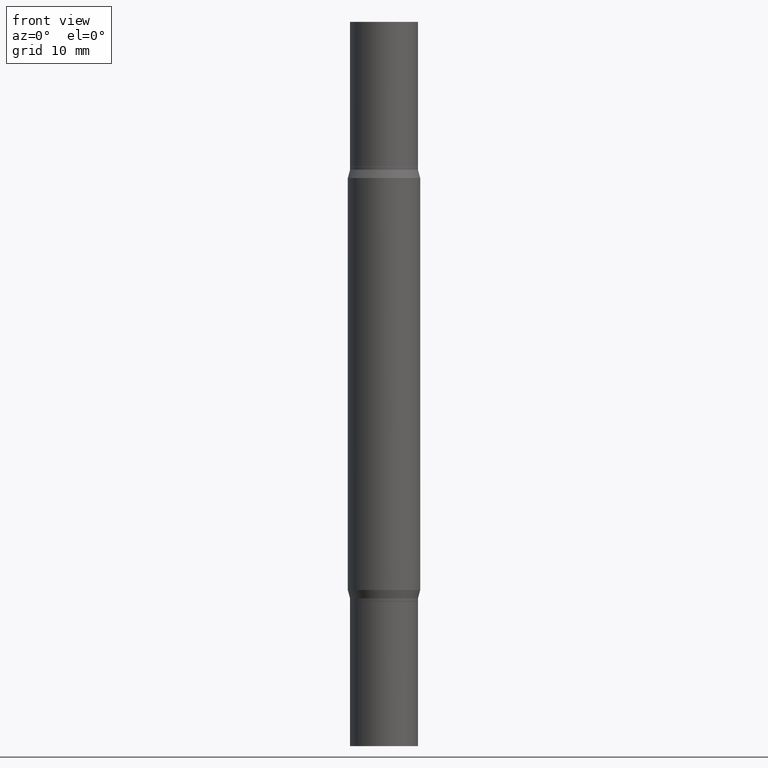
[diagram: clean part render]
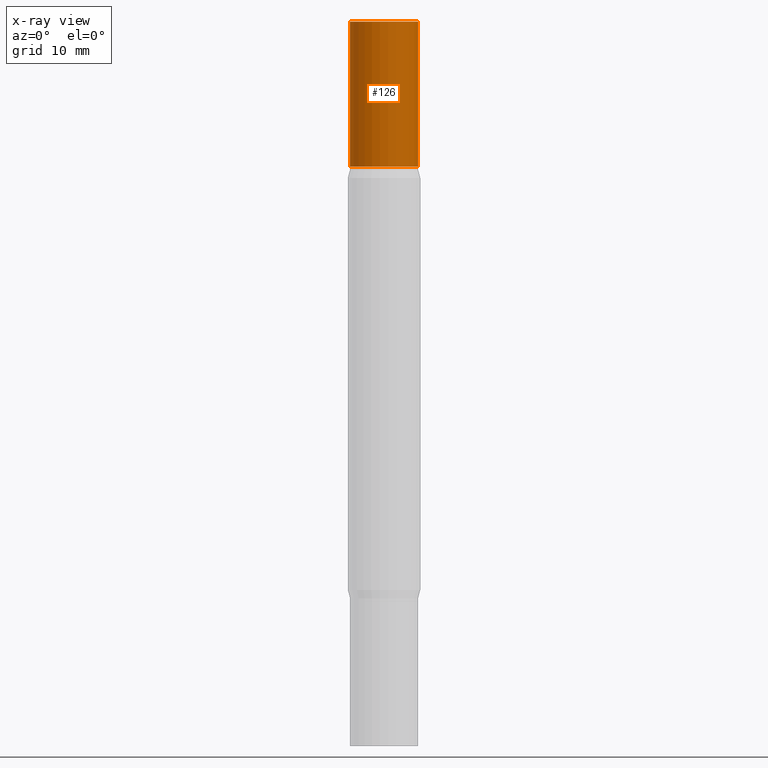
[diagram: x-ray — body ghosted, one internal face saturated and labeled with its STEP entity id]
A machine part, front view, then the same camera in x-ray: the body is ghosted and one INTERNAL B-rep face — a face not visible from any outside direction — is saturated and labeled: STEP entity #126.
In plain terms, the highlighted cylindrical surface (edge-blend (fillet) strip) has radius 2.9769 mm, axis along (-0, -0, -1).
Its self-contained STEP definition (entity closure, byte-faithful):
#9 = VERTEX_POINT ( 'NONE', #341 ) ;
#13 = EDGE_CURVE ( 'NONE', #325, #9, #295, .T. ) ;
#19 = CARTESIAN_POINT ( 'NONE',  ( 6.113672015462842613E-29, 4.046951474745467748E-19, 5.463695987328526437E-16 ) ) ;
#40 = CARTESIAN_POINT ( 'NONE',  ( -0.1171999999999999986, -6.849621325398205664E-17, -0.4999999999999993339 ) ) ;
#67 = DIRECTION ( 'NONE',  ( -2.445468806185136877E-29, -3.491805094961123683E-15, -1.000000000000000000 ) ) ;
#106 = CIRCLE ( 'NONE', #346, 0.1171999999999999986 ) ;
#126 = ADVANCED_FACE ( 'NONE', ( #829 ), #223, .T. ) ;
#160 = EDGE_CURVE ( 'NONE', #845, #9, #106, .T. ) ;
#195 = ORIENTED_EDGE ( 'NONE', *, *, #255, .F. ) ;
#202 = ORIENTED_EDGE ( 'NONE', *, *, #777, .T. ) ;
#223 = CYLINDRICAL_SURFACE ( 'NONE', #943, 0.1171999999999999986 ) ;
#229 = CIRCLE ( 'NONE', #743, 0.1171999999999999986 ) ;
#255 = EDGE_CURVE ( 'NONE', #945, #325, #229, .T. ) ;
#272 = CARTESIAN_POINT ( 'NONE',  ( -0.1171999999999999986, -7.925057676916510614E-15, -2.499999999999999556 ) ) ;
#295 = LINE ( 'NONE', #732, #423 ) ;
#309 = DIRECTION ( 'NONE',  ( -2.445468806185136597E-29, -3.491805094961124077E-15, -1.000000000000000000 ) ) ;
#319 = DIRECTION ( 'NONE',  ( 2.445468806185136597E-29, 3.491805094961124077E-15, 1.000000000000000000 ) ) ;
#325 = VERTEX_POINT ( 'NONE', #798 ) ;
#341 = CARTESIAN_POINT ( 'NONE',  ( 0.1171999999999999986, -2.563901078157915826E-15, -0.4999999999999993339 ) ) ;
#346 = AXIS2_PLACEMENT_3D ( 'NONE', #622, #686, #541 ) ;
#348 = VECTOR ( 'NONE', #571, 39.37007874015748143 ) ;
#354 = LINE ( 'NONE', #272, #348 ) ;
#384 = CARTESIAN_POINT ( 'NONE',  ( 0.000000000000000000, -8.729108042255335103E-15, -2.499999999999999556 ) ) ;
#423 = VECTOR ( 'NONE', #67, 39.37007874015748143 ) ;
#464 = EDGE_LOOP ( 'NONE', ( #195, #202, #634, #826 ) ) ;
#541 = DIRECTION ( 'NONE',  ( 1.000000000000000000, -6.982962677686265922E-15, 0.000000000000000000 ) ) ;
#571 = DIRECTION ( 'NONE',  ( -2.445468806185136877E-29, -3.491805094961123683E-15, -1.000000000000000000 ) ) ;
#619 = DIRECTION ( 'NONE',  ( 1.000000000000000000, -6.982962677686266711E-15, 0.000000000000000000 ) ) ;
#622 = CARTESIAN_POINT ( 'NONE',  ( 4.890937612370273754E-29, -1.745497852333085568E-15, -0.4999999999999993339 ) ) ;
#634 = ORIENTED_EDGE ( 'NONE', *, *, #160, .T. ) ;
#686 = DIRECTION ( 'NONE',  ( 2.445468806185136597E-29, 3.491805094961124077E-15, 1.000000000000000000 ) ) ;
#732 = CARTESIAN_POINT ( 'NONE',  ( 0.1171999999999999986, -9.547511268080165952E-15, -2.499999999999999556 ) ) ;
#743 = AXIS2_PLACEMENT_3D ( 'NONE', #19, #319, #619 ) ;
#777 = EDGE_CURVE ( 'NONE', #945, #845, #354, .T. ) ;
#798 = CARTESIAN_POINT ( 'NONE',  ( 0.1171999999999999986, -8.179985306773559567E-16, 5.463695987328526437E-16 ) ) ;
#826 = ORIENTED_EDGE ( 'NONE', *, *, #13, .F. ) ;
#829 = FACE_OUTER_BOUND ( 'NONE', #464, .T. ) ;
#845 = VERTEX_POINT ( 'NONE', #40 ) ;
#870 = CARTESIAN_POINT ( 'NONE',  ( -0.1171999999999999986, -6.849621325398194571E-17, 5.463695987328557991E-16 ) ) ;
#881 = DIRECTION ( 'NONE',  ( 1.000000000000000000, -6.982962677686269866E-15, 0.000000000000000000 ) ) ;
#943 = AXIS2_PLACEMENT_3D ( 'NONE', #384, #309, #881 ) ;
#945 = VERTEX_POINT ( 'NONE', #870 ) ;